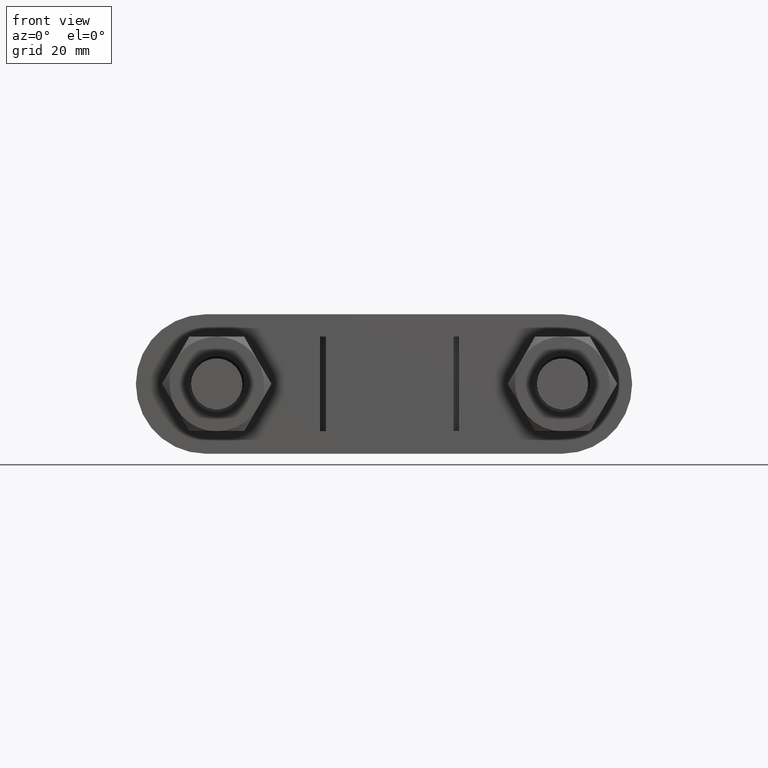
[diagram: clean part render]
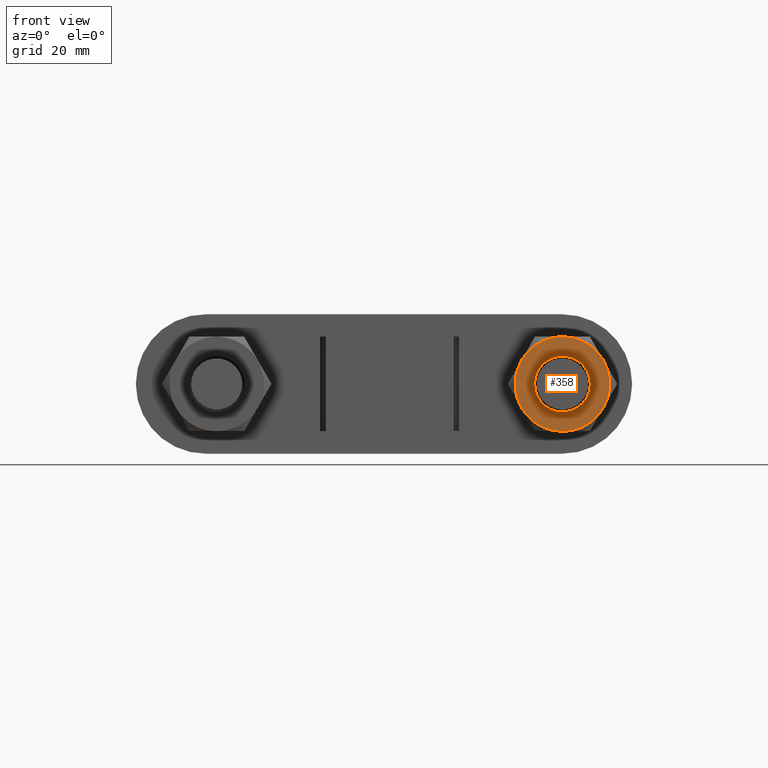
[diagram: same view with one face highlighted and labeled with its STEP entity id]
A machine part, front view. The second image highlights one B-rep face of the part: STEP entity #358.
In plain terms, the highlighted planar face has unit normal (0, 1, 0).
Its self-contained STEP definition (entity closure, byte-faithful):
#358 = ADVANCED_FACE( '', ( #589, #590 ), #591, .F. );
#589 = FACE_OUTER_BOUND( '', #1671, .T. );
#590 = FACE_BOUND( '', #1672, .T. );
#591 = PLANE( '', #1673 );
#1671 = EDGE_LOOP( '', ( #2379, #2380, #2381, #2382, #2383, #2384 ) );
#1672 = EDGE_LOOP( '', ( #2385 ) );
#1673 = AXIS2_PLACEMENT_3D( '', #2386, #2387, #2388 );
#2379 = ORIENTED_EDGE( '', *, *, #2737, .F. );
#2380 = ORIENTED_EDGE( '', *, *, #2738, .F. );
#2381 = ORIENTED_EDGE( '', *, *, #2739, .F. );
#2382 = ORIENTED_EDGE( '', *, *, #2740, .F. );
#2383 = ORIENTED_EDGE( '', *, *, #2735, .F. );
#2384 = ORIENTED_EDGE( '', *, *, #2741, .F. );
#2385 = ORIENTED_EDGE( '', *, *, #2742, .T. );
#2386 = CARTESIAN_POINT( '', ( 31.0000000000000, 17.0000000000012, 5.40357553624161E-015 ) );
#2387 = DIRECTION( '', ( 2.44921270764475E-016, 1.00000000000000, 3.06151588455594E-016 ) );
#2388 = DIRECTION( '', ( 0.866025403788559, -5.90322481845998E-017, -0.499999999992863 ) );
#2735 = EDGE_CURVE( '', #3100, #3102, #3103, .T. );
#2737 = EDGE_CURVE( '', #3105, #3106, #3107, .T. );
#2738 = EDGE_CURVE( '', #3108, #3105, #3109, .T. );
#2739 = EDGE_CURVE( '', #3110, #3108, #3111, .T. );
#2740 = EDGE_CURVE( '', #3102, #3110, #3112, .T. );
#2741 = EDGE_CURVE( '', #3106, #3100, #3113, .T. );
#2742 = EDGE_CURVE( '', #3114, #3114, #3115, .T. );
#3100 = VERTEX_POINT( '', #3896 );
#3102 = VERTEX_POINT( '', #3903 );
#3103 = CIRCLE( '', #3904, 8.50000000000000 );
#3105 = VERTEX_POINT( '', #3913 );
#3106 = VERTEX_POINT( '', #3914 );
#3107 = CIRCLE( '', #3915, 8.50000000000000 );
#3108 = VERTEX_POINT( '', #3916 );
#3109 = CIRCLE( '', #3917, 8.50000000000000 );
#3110 = VERTEX_POINT( '', #3918 );
#3111 = CIRCLE( '', #3919, 8.50000000000000 );
#3112 = CIRCLE( '', #3920, 8.50000000000000 );
#3113 = CIRCLE( '', #3921, 8.50000000000000 );
#3114 = VERTEX_POINT( '', #3922 );
#3115 = CIRCLE( '', #3923, 5.00000000000000 );
#3896 = CARTESIAN_POINT( '', ( 23.6387840677973, 17.0000000000012, 4.24999999993934 ) );
#3903 = CARTESIAN_POINT( '', ( 30.9999999999294, 17.0000000000012, 8.49999999999904 ) );
#3904 = AXIS2_PLACEMENT_3D( '', #4338, #4339, #4340 );
#3913 = CARTESIAN_POINT( '', ( 31.0000000000706, 17.0000000000012, -8.49999999999903 ) );
#3914 = CARTESIAN_POINT( '', ( 23.6387840678679, 17.0000000000012, -4.25000000005970 ) );
#3915 = AXIS2_PLACEMENT_3D( '', #4341, #4342, #4343 );
#3916 = CARTESIAN_POINT( '', ( 38.3612159322028, 17.0000000000012, -4.24999999993933 ) );
#3917 = AXIS2_PLACEMENT_3D( '', #4344, #4345, #4346 );
#3918 = CARTESIAN_POINT( '', ( 38.3612159321322, 17.0000000000012, 4.25000000005971 ) );
#3919 = AXIS2_PLACEMENT_3D( '', #4347, #4348, #4349 );
#3920 = AXIS2_PLACEMENT_3D( '', #4350, #4351, #4352 );
#3921 = AXIS2_PLACEMENT_3D( '', #4353, #4354, #4355 );
#3922 = CARTESIAN_POINT( '', ( 35.3301270189428, 17.0000000000012, -2.49999999996431 ) );
#3923 = AXIS2_PLACEMENT_3D( '', #4356, #4357, #4358 );
#4338 = CARTESIAN_POINT( '', ( 31.0000000000000, 17.0000000000012, 5.40357553624161E-015 ) );
#4339 = DIRECTION( '', ( 2.44921270764476E-016, 1.00000000000000, 3.06151588455594E-016 ) );
#4340 = DIRECTION( '', ( 0.866025403788559, -5.90322481845998E-017, -0.499999999992863 ) );
#4341 = CARTESIAN_POINT( '', ( 31.0000000000000, 17.0000000000012, 5.40357553624161E-015 ) );
#4342 = DIRECTION( '', ( 2.44921270764476E-016, 1.00000000000000, 3.06151588455594E-016 ) );
#4343 = DIRECTION( '', ( 0.866025403788559, -5.90322481845998E-017, -0.499999999992863 ) );
#4344 = CARTESIAN_POINT( '', ( 31.0000000000000, 17.0000000000012, 5.40357553624161E-015 ) );
#4345 = DIRECTION( '', ( 2.44921270764476E-016, 1.00000000000000, 3.06151588455594E-016 ) );
#4346 = DIRECTION( '', ( 0.866025403788559, -5.90322481845998E-017, -0.499999999992863 ) );
#4347 = CARTESIAN_POINT( '', ( 31.0000000000000, 17.0000000000012, 5.40357553624161E-015 ) );
#4348 = DIRECTION( '', ( 2.44921270764476E-016, 1.00000000000000, 3.06151588455594E-016 ) );
#4349 = DIRECTION( '', ( 0.866025403788559, -5.90322481845998E-017, -0.499999999992863 ) );
#4350 = CARTESIAN_POINT( '', ( 31.0000000000000, 17.0000000000012, 5.40357553624161E-015 ) );
#4351 = DIRECTION( '', ( 2.44921270764476E-016, 1.00000000000000, 3.06151588455594E-016 ) );
#4352 = DIRECTION( '', ( 0.866025403788559, -5.90322481845998E-017, -0.499999999992863 ) );
#4353 = CARTESIAN_POINT( '', ( 31.0000000000000, 17.0000000000012, 5.40357553624161E-015 ) );
#4354 = DIRECTION( '', ( 2.44921270764476E-016, 1.00000000000000, 3.06151588455594E-016 ) );
#4355 = DIRECTION( '', ( 0.866025403788559, -5.90322481845998E-017, -0.499999999992863 ) );
#4356 = CARTESIAN_POINT( '', ( 31.0000000000000, 17.0000000000012, 5.40357553624161E-015 ) );
#4357 = DIRECTION( '', ( 2.44921270764476E-016, 1.00000000000000, 3.06151588455594E-016 ) );
#4358 = DIRECTION( '', ( 0.866025403788559, -5.90322481845998E-017, -0.499999999992863 ) );